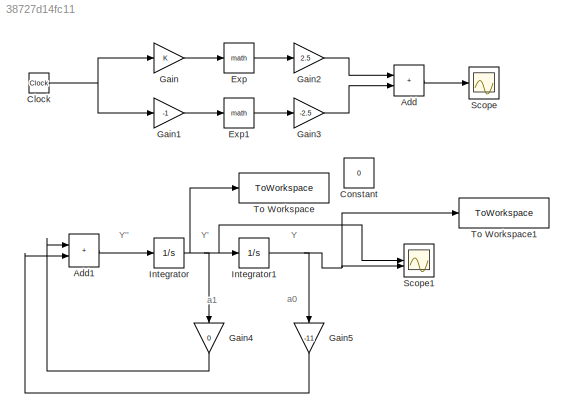
MODEL slx_38727d14fc11
KIND model
CONFIG AbsTol = auto
CONFIG EnableMultiTasking = off
CONFIG FixedStep = 0.0001
CONFIG MaxStep = auto
CONFIG MinStep = auto
CONFIG RelTol = 1e-3
CONFIG SampleTimeConstraint = Unconstrained
CONFIG SolverName = FixedStepAuto
CONFIG StartTime = 0.0
CONFIG StopTime = 100
BLOCK [Sum] Add
  IconShape = rectangular
BLOCK [Sum] Add1
  IconShape = rectangular
BLOCK [Clock] Clock
BLOCK [Constant] Constant
  SampleTime = -1
  Value = 0
BLOCK [Math] Exp
  OutputSignalType = real
BLOCK [Math] Exp1
  OutputSignalType = real
BLOCK [Gain] Gain
BLOCK [Gain] Gain1
  Gain = -1
BLOCK [Gain] Gain2
  Gain = 2.5
BLOCK [Gain] Gain3
  Gain = -2.5
BLOCK [Gain] Gain4
  Gain = 0
  NameLocation = left
BLOCK [Gain] Gain5
  Gain = -11
  NameLocation = left
BLOCK [Integrator] Integrator
  InitialCondition = 10
BLOCK [Integrator] Integrator1
  InitialCondition = 5
BLOCK [Scope] Scope
  Floating = off
  NumInputPorts = 1
  ScopeSpecificationString = Simulink.scopes.TimeScopeBlockCfg('CurrentConfiguration', extmgr.ConfigurationSet(extmgr.Configuration('Core','General UI',true),extmgr.Configuration('Core','Source UI',true),extmgr.Configuration('Sources','WiredSimulink',true),extmgr.Configuration('Visuals','Time Domain',true,'SerializedDisplays',{struct('MinYLimReal','-0.7345','MaxYLimReal','6.61051','YLabelReal','','MinYLimMag','0.00000','MaxYL...<+1350ch>
BLOCK [Scope] Scope1
  Floating = off
  NumInputPorts = 2
  ScopeSpecificationString = Simulink.scopes.TimeScopeBlockCfg('CurrentConfiguration', extmgr.ConfigurationSet(extmgr.Configuration('Core','General UI',true),extmgr.Configuration('Core','Source UI',true),extmgr.Configuration('Sources','WiredSimulink',true,'DataLoggingVariableName','ScopeData1'),extmgr.Configuration('Visuals','Time Domain',true,'SerializedDisplays',{struct('MinYLimReal','-24.20615','MaxYLimReal','24.20615','YL...<+1389ch>
BLOCK [ToWorkspace] To Workspace
  FixptAsFi = on
  MaxDataPoints = inf
  SampleTime = -1
  SaveFormat = Timeseries
  VariableName = simout
BLOCK [ToWorkspace] To Workspace1
  FixptAsFi = on
  MaxDataPoints = inf
  SampleTime = -1
  SaveFormat = Timeseries
  VariableName = simout1
ANNOTATION (root): Y
ANNOTATION (root): Y'
ANNOTATION (root): Y''
ANNOTATION (root): a0
ANNOTATION (root): a1
LINE Add1:1 -> Integrator:1
LINE Add:1 -> Scope:1
NET Clock:1 -> Gain1:1, Gain:1
LINE Exp1:1 -> Gain3:1
LINE Exp:1 -> Gain2:1
LINE Gain1:1 -> Exp1:1
LINE Gain2:1 -> Add:1
LINE Gain3:1 -> Add:2
LINE Gain4:1 -> Add1:1
LINE Gain5:1 -> Add1:2
LINE Gain:1 -> Exp:1
NET Integrator1:1 -> Gain5:1, Scope1:2, To Workspace1:1
NET Integrator:1 -> Gain4:1, Integrator1:1, Scope1:1, To Workspace:1
note: NET lines group one-source signal fan-out (src -> all destinations, sorted); 1:1 wires keep LINE
